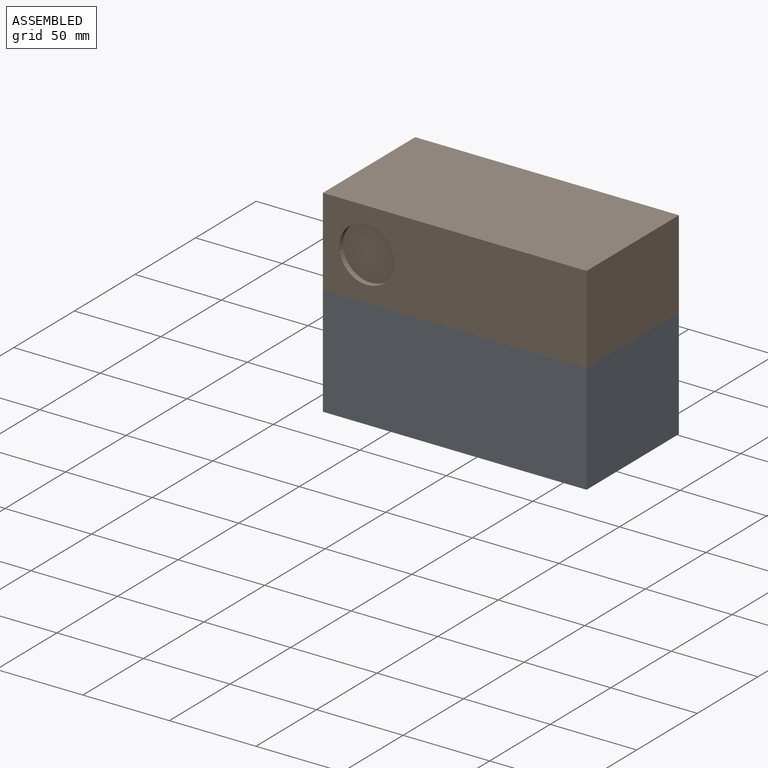
[diagram: assembled view]
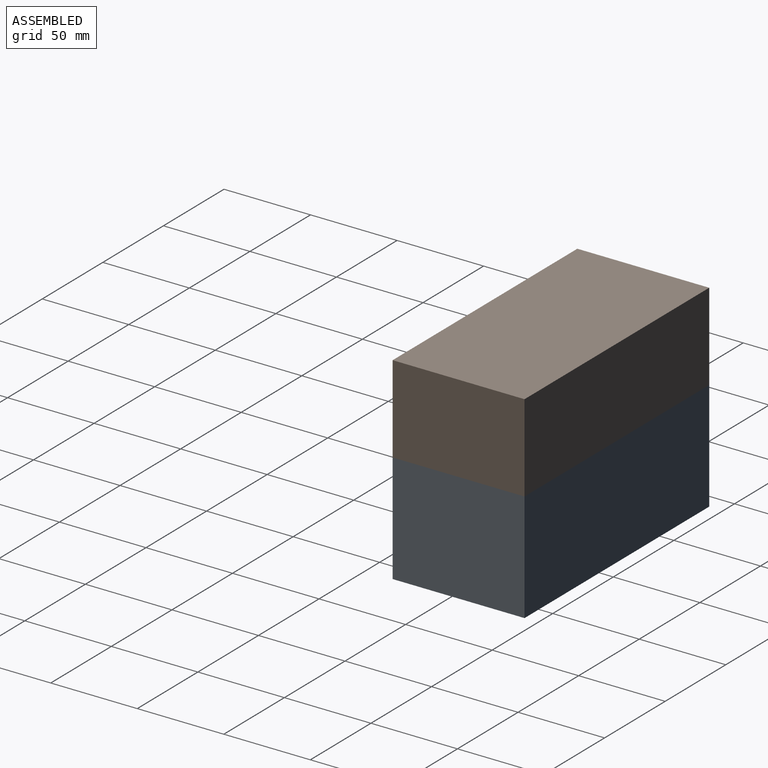
[diagram: assembled view, second angle]
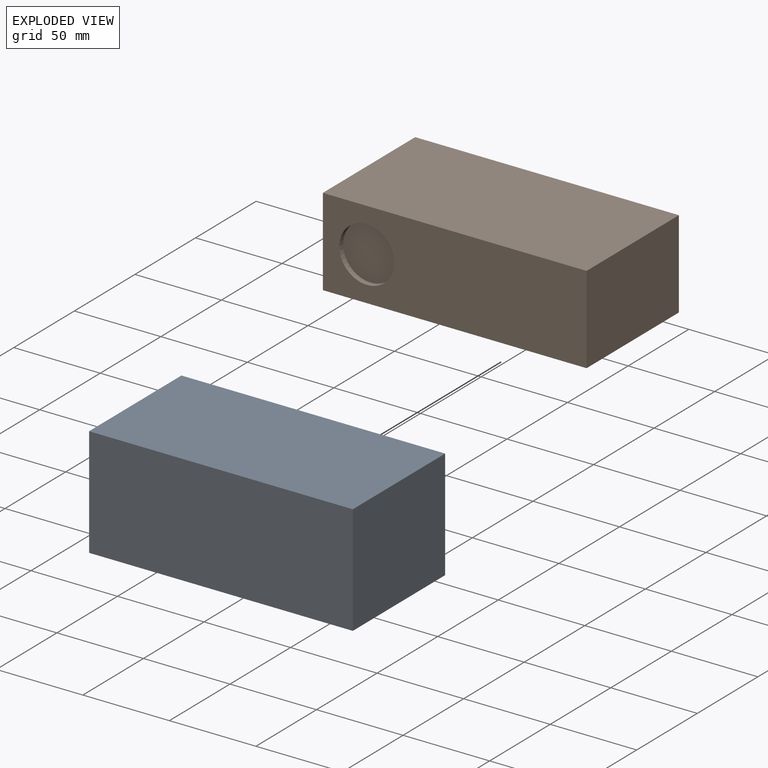
[diagram: exploded view]
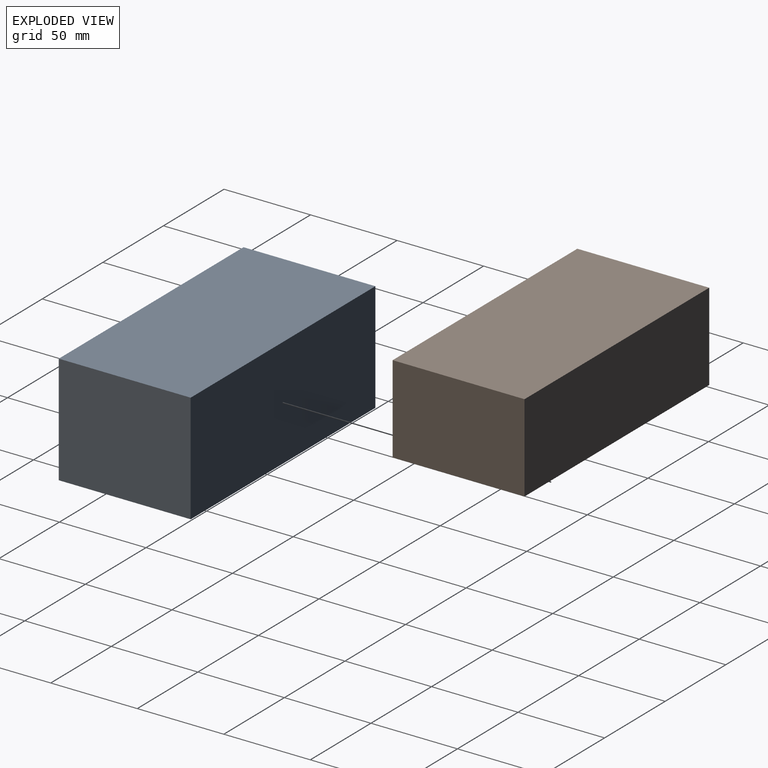
[diagram: exploded view, second angle]
ASSEMBLY  parts=2 mates=3
PART A: 6 faces, bbox 152.4x76.2x63.5 mm
  f0: plane 76.2x63.5mm, normal (1,0,0), area 4838.7mm2, adj f1,f3,f4,f5
  f1: plane 152.4x76.2mm, normal (0,0,1), area 11612.9mm2, adj f0,f2,f4,f5
  f2: plane 76.2x63.5mm, normal (-1,0,0), area 4838.7mm2, adj f1,f3,f4,f5
  f3: plane 152.4x76.2mm, normal (0,0,-1), area 11612.9mm2, adj f0,f2,f4,f5
  f4: plane 152.4x63.5mm, normal (0,-1,0), area 9677.4mm2, adj f0,f1,f2,f3
  f5: plane 152.4x63.5mm, normal (0,1,0), area 9677.4mm2, adj f0,f1,f2,f3
PART B: 8 faces, bbox 152.4x76.2x50.8 mm
  f0: plane 76.2x50.8mm, normal (1,0,0), area 3871mm2, adj f1,f3,f4,f5
  f1: plane 152.4x76.2mm, normal (0,0,1), area 11612.9mm2, adj f0,f2,f4,f5
  f2: plane 76.2x50.8mm, normal (-1,0,0), area 3871mm2, adj f1,f3,f4,f5
  f3: plane 152.4x76.2mm, normal (0,0,-1), area 11612.9mm2, adj f0,f2,f4,f5
  f4: plane 152.4x50.8mm, normal (0,-1,0), area 6950.2mm2, adj f0,f1,f2,f3,f6
  f5: plane 152.4x50.8mm, normal (0,1,0), area 7741.9mm2, adj f0,f1,f2,f3
  f6: cylinder r=15.88mm len=31.75mm, axis (0,-1,0), area 316.7mm2, adj f4,f7
  f7: plane 31.75x31.75mm, normal (0,-1,0), area 791.7mm2, adj f6
PLACE A t=(-58.93,-4.17,-17.24)mm
PLACE B t=(-58.93,-4.17,39.91)mm
MATE planar B.f4 <-> A.f4  axis (0,-1,0) through (-53.15,-80.37,39.91)mm
MATE planar B.f0 <-> A.f0  axis (1,0,0) through (17.27,-42.27,39.91)mm
MATE planar B.f3 <-> A.f1  axis (0,0,-1) through (17.27,-80.37,14.51)mm
